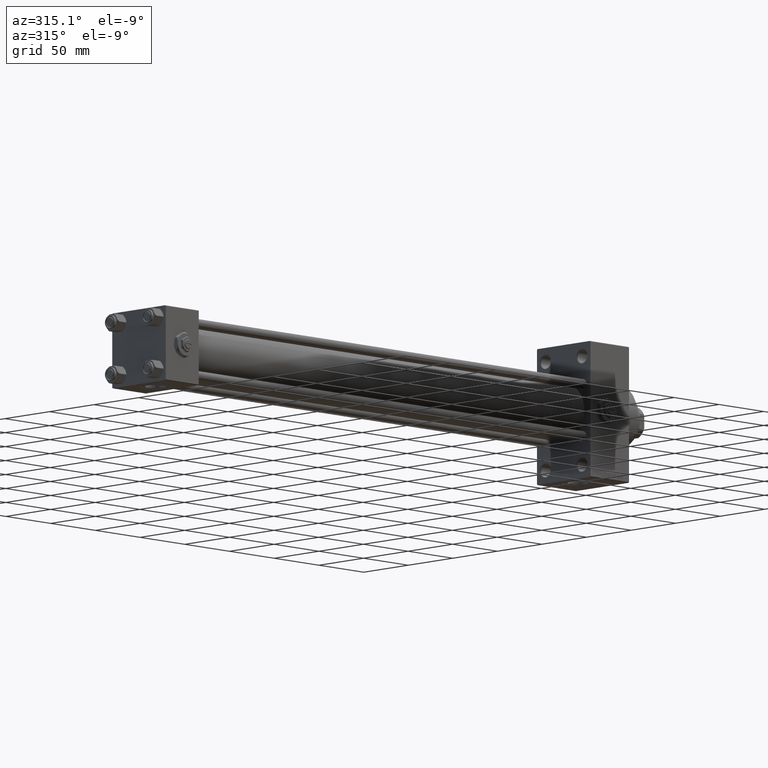
[diagram: clean part render]
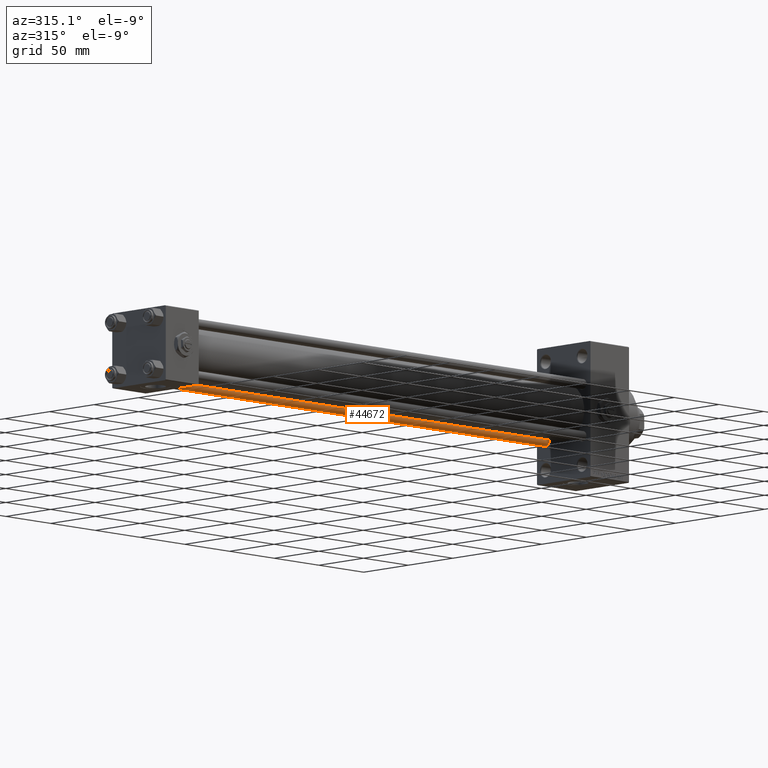
[diagram: same view with one face highlighted and labeled with its STEP entity id]
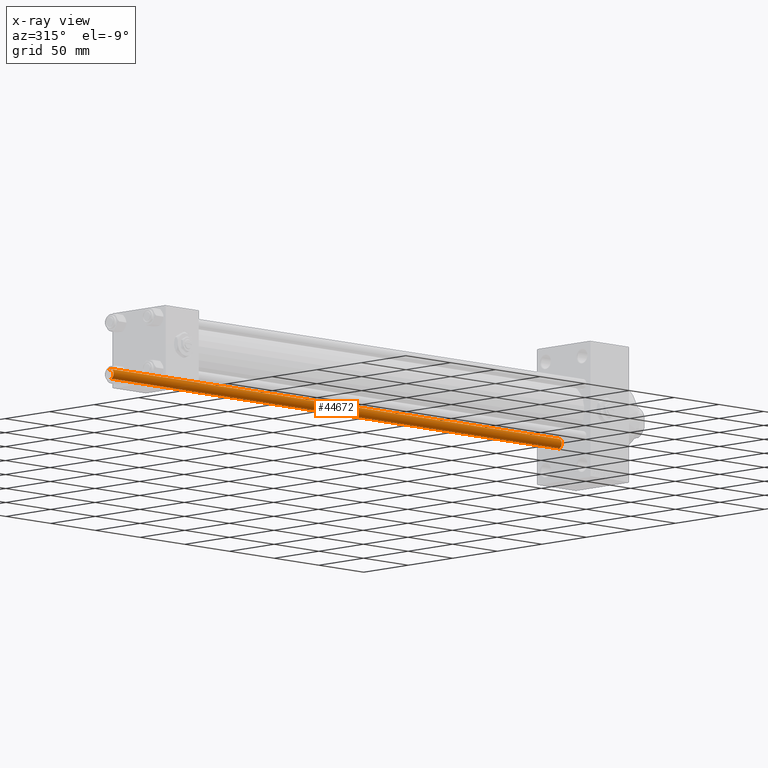
[diagram: x-ray of the same camera — body ghosted, the highlighted face saturated]
A machine part, auxiliary view. The second image highlights one B-rep face of the part: STEP entity #44672.
The next image is the same camera in x-ray: the body ghosted, the highlighted face saturated — about 1% of this face is hidden behind the body in this view.
In plain terms, the highlighted cylindrical surface (edge-blend (fillet) strip) has radius 4 mm, axis along (1, -0, 0).
Its self-contained STEP definition (entity closure, byte-faithful):
#453 = CARTESIAN_POINT ( 'NONE',  ( 0.000000000000000000, 0.000000000000000000, 501.4999999999999432 ) ) ;
#1155 = ORIENTED_EDGE ( 'NONE', *, *, #11094, .F. ) ;
#3367 = ORIENTED_EDGE ( 'NONE', *, *, #47779, .T. ) ;
#4430 = ORIENTED_EDGE ( 'NONE', *, *, #23448, .T. ) ;
#5130 = CIRCLE ( 'NONE', #18663, 4.000000000000000000 ) ;
#5184 = FACE_OUTER_BOUND ( 'NONE', #46292, .T. ) ;
#8181 = CARTESIAN_POINT ( 'NONE',  ( 0.000000000000000000, 0.000000000000000000, 0.4999999999999449329 ) ) ;
#10677 = VECTOR ( 'NONE', #45670, 1000.000000000000000 ) ;
#11094 = EDGE_CURVE ( 'NONE', #16995, #34132, #33963, .T. ) ;
#13772 = CARTESIAN_POINT ( 'NONE',  ( -4.000000000000000000, 0.000000000000000000, 501.4999999999999432 ) ) ;
#16173 = CARTESIAN_POINT ( 'NONE',  ( 0.000000000000000000, 0.000000000000000000, 502.0000000000000000 ) ) ;
#16901 = CYLINDRICAL_SURFACE ( 'NONE', #36772, 4.000000000000000000 ) ;
#16995 = VERTEX_POINT ( 'NONE', #27229 ) ;
#17477 = CARTESIAN_POINT ( 'NONE',  ( 4.000000000000000000, 4.898587196589412829E-16, 0.4999999999999449329 ) ) ;
#18045 = VERTEX_POINT ( 'NONE', #13772 ) ;
#18372 = CARTESIAN_POINT ( 'NONE',  ( -4.000000000000000000, 0.000000000000000000, 0.4999999999999449329 ) ) ;
#18663 = AXIS2_PLACEMENT_3D ( 'NONE', #8181, #46049, #49049 ) ;
#22649 = DIRECTION ( 'NONE',  ( 0.000000000000000000, 0.000000000000000000, -1.000000000000000000 ) ) ;
#22982 = CARTESIAN_POINT ( 'NONE',  ( -4.000000000000000000, 0.000000000000000000, 502.0000000000000000 ) ) ;
#23448 = EDGE_CURVE ( 'NONE', #16995, #18045, #41836, .T. ) ;
#23888 = DIRECTION ( 'NONE',  ( -1.000000000000000000, 0.000000000000000000, 0.000000000000000000 ) ) ;
#25994 = LINE ( 'NONE', #22982, #31354 ) ;
#26974 = CARTESIAN_POINT ( 'NONE',  ( 4.000000000000000000, 4.898587196589412829E-16, 502.0000000000000000 ) ) ;
#27229 = CARTESIAN_POINT ( 'NONE',  ( 4.000000000000000000, 4.898587196589412829E-16, 501.4999999999999432 ) ) ;
#27486 = AXIS2_PLACEMENT_3D ( 'NONE', #453, #22649, #45326 ) ;
#31354 = VECTOR ( 'NONE', #38177, 1000.000000000000000 ) ;
#31748 = ORIENTED_EDGE ( 'NONE', *, *, #46112, .T. ) ;
#33963 = LINE ( 'NONE', #26974, #10677 ) ;
#34132 = VERTEX_POINT ( 'NONE', #17477 ) ;
#35590 = DIRECTION ( 'NONE',  ( -0.000000000000000000, -0.000000000000000000, -1.000000000000000000 ) ) ;
#36772 = AXIS2_PLACEMENT_3D ( 'NONE', #16173, #35590, #23888 ) ;
#38177 = DIRECTION ( 'NONE',  ( -0.000000000000000000, -0.000000000000000000, -1.000000000000000000 ) ) ;
#39154 = VERTEX_POINT ( 'NONE', #18372 ) ;
#41836 = CIRCLE ( 'NONE', #27486, 4.000000000000000000 ) ;
#44672 = ADVANCED_FACE ( 'NONE', ( #5184 ), #16901, .T. ) ;
#45326 = DIRECTION ( 'NONE',  ( 1.000000000000000000, 0.000000000000000000, 0.000000000000000000 ) ) ;
#45670 = DIRECTION ( 'NONE',  ( -0.000000000000000000, -0.000000000000000000, -1.000000000000000000 ) ) ;
#46049 = DIRECTION ( 'NONE',  ( -0.000000000000000000, -0.000000000000000000, 1.000000000000000000 ) ) ;
#46112 = EDGE_CURVE ( 'NONE', #18045, #39154, #25994, .T. ) ;
#46292 = EDGE_LOOP ( 'NONE', ( #1155, #4430, #31748, #3367 ) ) ;
#47779 = EDGE_CURVE ( 'NONE', #39154, #34132, #5130, .T. ) ;
#49049 = DIRECTION ( 'NONE',  ( 1.000000000000000000, 0.000000000000000000, 0.000000000000000000 ) ) ;